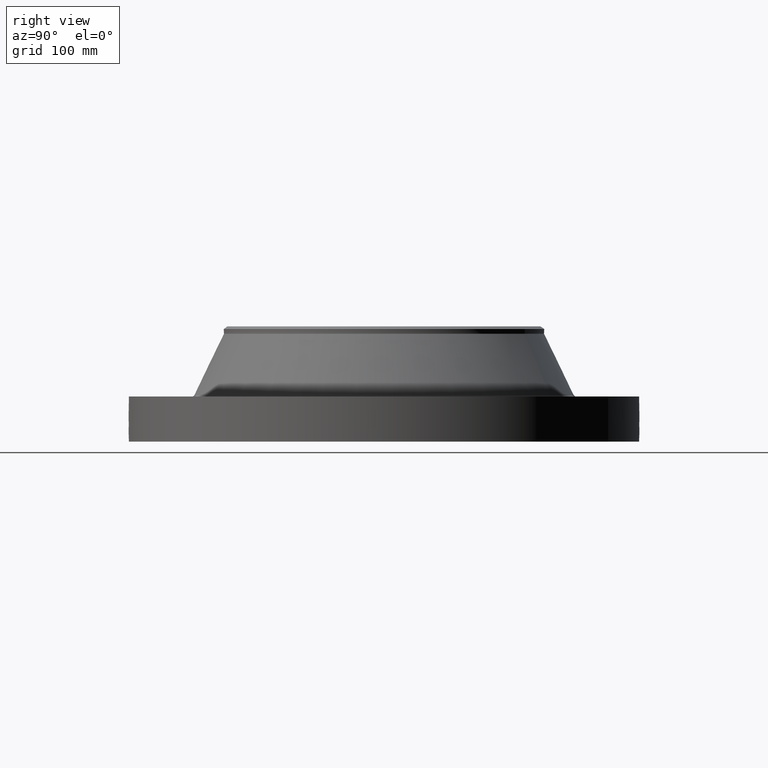
[diagram: clean part render]
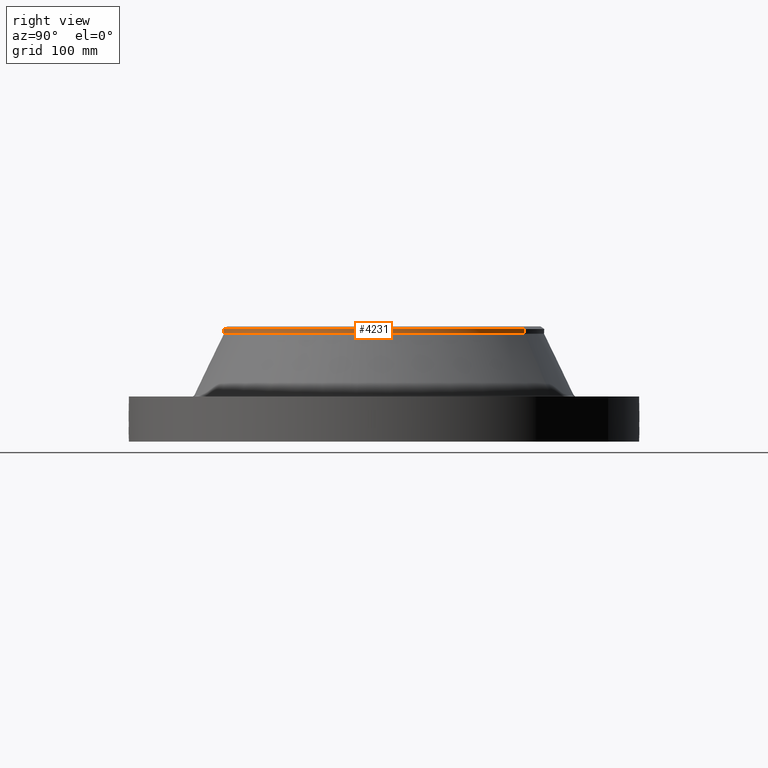
[diagram: same view with one face highlighted and labeled with its STEP entity id]
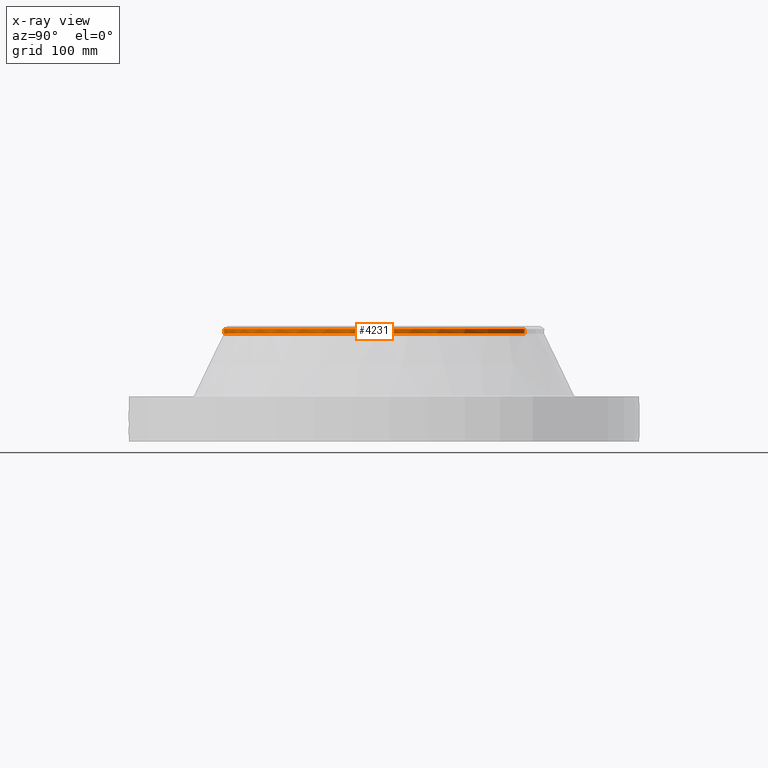
[diagram: x-ray of the same camera — body ghosted, the highlighted face saturated]
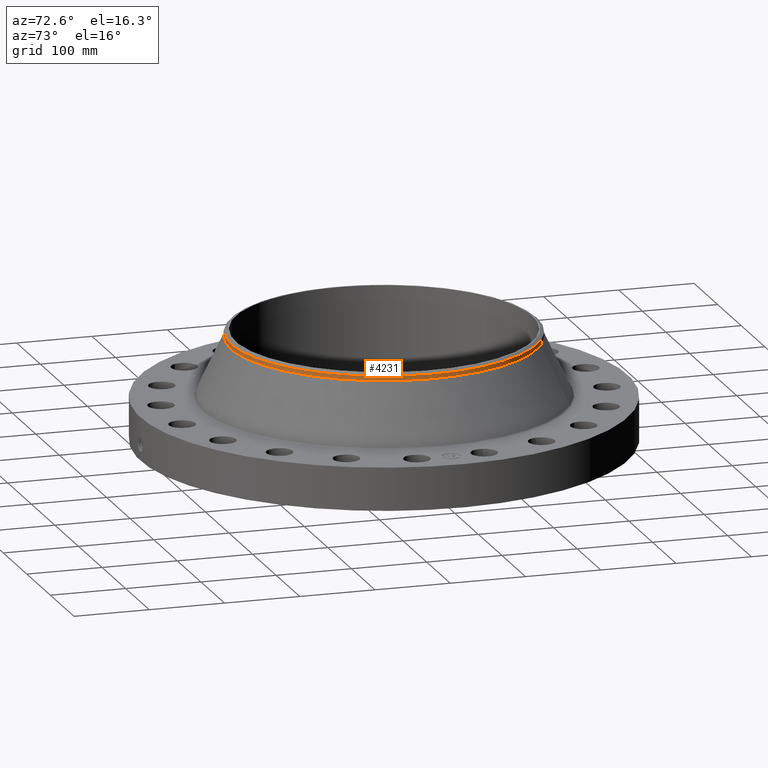
[diagram: same view with one face highlighted and labeled with its STEP entity id]
A machine part, right view. The second image highlights one B-rep face of the part: STEP entity #4231.
The next image is the same camera in x-ray: the body ghosted, the highlighted face saturated — about 0% of this face is hidden behind the body in this view.
A second angle (auxiliary view) of the same face is appended — the face is thin or edge-on in the first view.
In plain terms, the highlighted cylindrical surface (partial cylindrical patch) has radius 203.2 mm, axis along (0, 0, -1).
Its self-contained STEP definition (entity closure, byte-faithful):
#3412=AXIS2_PLACEMENT_3D('Circle Axis2P3D',#3410,#3411,$) ;
#3867=AXIS2_PLACEMENT_3D('Circle Axis2P3D',#3865,#3866,$) ;
#3880=AXIS2_PLACEMENT_3D('Circle Axis2P3D',#3878,#3879,$) ;
#4212=AXIS2_PLACEMENT_3D('Cylinder Axis2P3D',#4209,#4210,#4211) ;
#3407=CARTESIAN_POINT('Vertex',(3.83540430885,7.02066049515,5.44236722846)) ;
#3410=CARTESIAN_POINT('Axis2P3D Location',(0.,0.,5.44236722846)) ;
#3414=CARTESIAN_POINT('Vertex',(-3.83540430885,-7.02066049515,5.44236722846)) ;
#3848=CARTESIAN_POINT('Vertex',(3.83540430885,-7.02066049515,5.6785877009)) ;
#3862=CARTESIAN_POINT('Vertex',(-3.83540430885,-7.02066049515,5.6785877009)) ;
#3865=CARTESIAN_POINT('Axis2P3D Location',(0.,0.,5.6785877009)) ;
#3878=CARTESIAN_POINT('Axis2P3D Location',(0.,0.,5.6785877009)) ;
#3882=CARTESIAN_POINT('Vertex',(3.83540430885,7.02066049515,5.6785877009)) ;
#4209=CARTESIAN_POINT('Axis2P3D Location',(0.,0.,2.93500000001)) ;
#4214=CARTESIAN_POINT('Line Origine',(-3.83540430885,-7.02066049515,5.56047746468)) ;
#4219=CARTESIAN_POINT('Line Origine',(3.83540430885,7.02066049515,5.56047746468)) ;
#3411=DIRECTION('Axis2P3D Direction',(0.,0.,-0.0393700787402)) ;
#3866=DIRECTION('Axis2P3D Direction',(0.,0.,-0.0393700787402)) ;
#3879=DIRECTION('Axis2P3D Direction',(0.,0.,-0.0393700787402)) ;
#4210=DIRECTION('Axis2P3D Direction',(0.,0.,-0.0393700787402)) ;
#4211=DIRECTION('Axis2P3D XDirection',(-0.0188750212049,-0.0345504945626,0.)) ;
#4215=DIRECTION('Vector Direction',(0.,0.,-0.0393700787402)) ;
#4220=DIRECTION('Vector Direction',(0.,0.,-0.0393700787402)) ;
#4216=VECTOR('Line Direction',#4215,0.0393700787402) ;
#4221=VECTOR('Line Direction',#4220,0.0393700787402) ;
#4225=ORIENTED_EDGE('',*,*,#4218,.F.) ;
#4226=ORIENTED_EDGE('',*,*,#3416,.F.) ;
#4227=ORIENTED_EDGE('',*,*,#4223,.T.) ;
#4228=ORIENTED_EDGE('',*,*,#3884,.F.) ;
#4229=ORIENTED_EDGE('',*,*,#3869,.T.) ;
#4231=ADVANCED_FACE('PartBody',(#4230),#4213,.T.) ;
#3413=CIRCLE('generated circle',#3412,8.00000000003) ;
#3868=CIRCLE('generated circle',#3867,8.00000000003) ;
#3881=CIRCLE('generated circle',#3880,8.00000000003) ;
#4213=CYLINDRICAL_SURFACE('generated cylinder',#4212,8.00000000003) ;
#3416=EDGE_CURVE('',#3408,#3415,#3413,.T.) ;
#3869=EDGE_CURVE('',#3849,#3863,#3868,.T.) ;
#3884=EDGE_CURVE('',#3849,#3883,#3881,.F.) ;
#4218=EDGE_CURVE('',#3415,#3863,#4217,.F.) ;
#4223=EDGE_CURVE('',#3408,#3883,#4222,.F.) ;
#4224=EDGE_LOOP('',(#4225,#4226,#4227,#4228,#4229)) ;
#4230=FACE_OUTER_BOUND('',#4224,.T.) ;
#4217=LINE('Line',#4214,#4216) ;
#4222=LINE('Line',#4219,#4221) ;
#3408=VERTEX_POINT('',#3407) ;
#3415=VERTEX_POINT('',#3414) ;
#3849=VERTEX_POINT('',#3848) ;
#3863=VERTEX_POINT('',#3862) ;
#3883=VERTEX_POINT('',#3882) ;